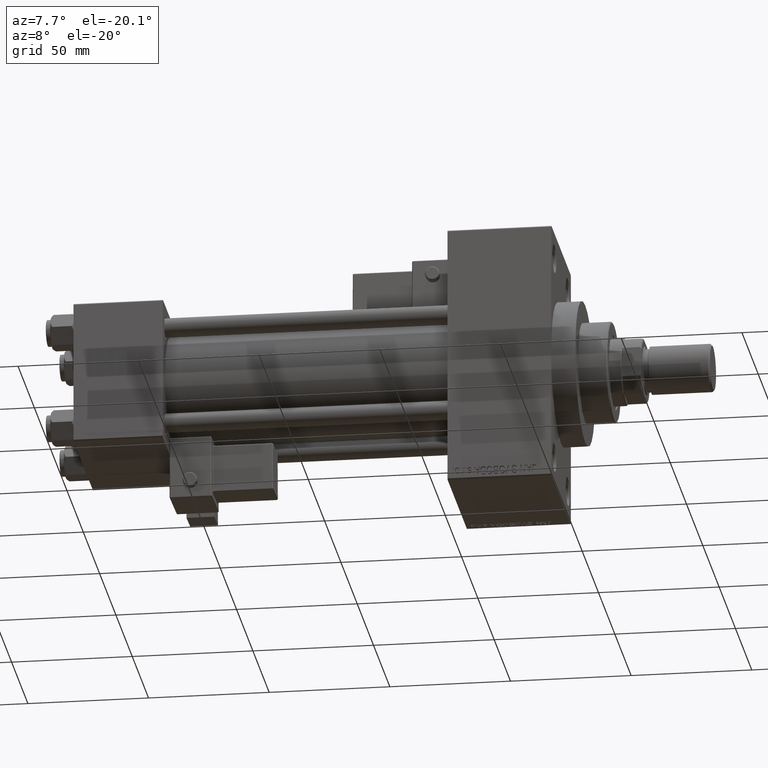
[diagram: clean part render]
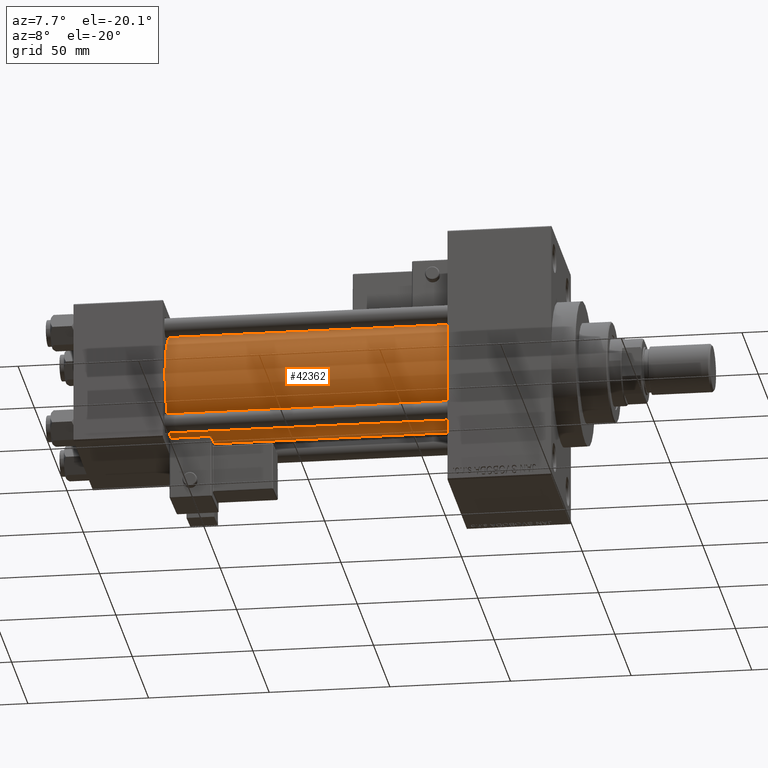
[diagram: same view with one face highlighted and labeled with its STEP entity id]
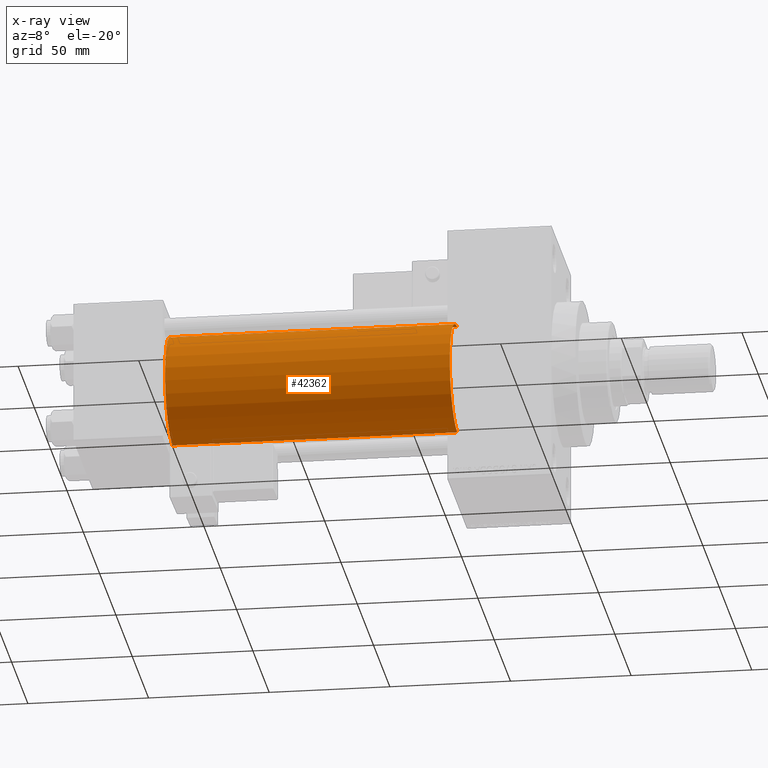
[diagram: x-ray of the same camera — body ghosted, the highlighted face saturated]
A machine part, auxiliary view. The second image highlights one B-rep face of the part: STEP entity #42362.
The next image is the same camera in x-ray: the body ghosted, the highlighted face saturated — about 0% of this face is hidden behind the body in this view.
In plain terms, the highlighted cylindrical surface (partial cylindrical patch) has radius 23 mm, axis along (-1, -0, -0).
Its self-contained STEP definition (entity closure, byte-faithful):
#115 = CARTESIAN_POINT ( 'NONE',  ( 155.0000000000000000, 2.146024240737016609E-16, -23.00000000000000000 ) ) ;
#2075 = CARTESIAN_POINT ( 'NONE',  ( 37.00000000000000711, -2.602085213965210642E-15, 0.000000000000000000 ) ) ;
#4456 = VERTEX_POINT ( 'NONE', #21314 ) ;
#5191 = VECTOR ( 'NONE', #46521, 1000.000000000000000 ) ;
#5216 = EDGE_CURVE ( 'NONE', #28756, #4456, #15247, .T. ) ;
#6140 = FACE_OUTER_BOUND ( 'NONE', #24162, .T. ) ;
#7504 = EDGE_CURVE ( 'NONE', #46650, #28756, #25434, .T. ) ;
#8818 = VECTOR ( 'NONE', #18774, 1000.000000000000000 ) ;
#9070 = ORIENTED_EDGE ( 'NONE', *, *, #33088, .T. ) ;
#14269 = LINE ( 'NONE', #26080, #8818 ) ;
#15247 = LINE ( 'NONE', #115, #5191 ) ;
#17540 = DIRECTION ( 'NONE',  ( 0.000000000000000000, 0.000000000000000000, -1.000000000000000000 ) ) ;
#17688 = DIRECTION ( 'NONE',  ( 1.000000000000000000, -0.000000000000000000, 0.000000000000000000 ) ) ;
#18774 = DIRECTION ( 'NONE',  ( -1.000000000000000000, -0.000000000000000000, -0.000000000000000000 ) ) ;
#21314 = CARTESIAN_POINT ( 'NONE',  ( 37.00000000000000711, 2.146024240737016609E-16, -23.00000000000000000 ) ) ;
#21501 = CYLINDRICAL_SURFACE ( 'NONE', #37043, 23.00000000000000000 ) ;
#24162 = EDGE_LOOP ( 'NONE', ( #32517, #47142, #47826, #9070 ) ) ;
#25434 = CIRCLE ( 'NONE', #35077, 23.00000000000000000 ) ;
#26080 = CARTESIAN_POINT ( 'NONE',  ( 155.0000000000000000, -2.602085213965210642E-15, 23.00000000000000000 ) ) ;
#26767 = CIRCLE ( 'NONE', #47772, 23.00000000000000000 ) ;
#27022 = CARTESIAN_POINT ( 'NONE',  ( 155.0000000000000000, 2.146024240737016609E-16, -23.00000000000000000 ) ) ;
#28291 = CARTESIAN_POINT ( 'NONE',  ( 155.0000000000000000, -2.602085213965210642E-15, 0.000000000000000000 ) ) ;
#28756 = VERTEX_POINT ( 'NONE', #27022 ) ;
#30370 = CARTESIAN_POINT ( 'NONE',  ( 37.00000000000000711, -2.602085213965210642E-15, 23.00000000000000000 ) ) ;
#32517 = ORIENTED_EDGE ( 'NONE', *, *, #5216, .F. ) ;
#33088 = EDGE_CURVE ( 'NONE', #37468, #4456, #26767, .T. ) ;
#35077 = AXIS2_PLACEMENT_3D ( 'NONE', #45294, #37209, #17540 ) ;
#36345 = DIRECTION ( 'NONE',  ( 0.000000000000000000, 0.000000000000000000, 1.000000000000000000 ) ) ;
#37043 = AXIS2_PLACEMENT_3D ( 'NONE', #28291, #37874, #45715 ) ;
#37209 = DIRECTION ( 'NONE',  ( 1.000000000000000000, 0.000000000000000000, 0.000000000000000000 ) ) ;
#37468 = VERTEX_POINT ( 'NONE', #30370 ) ;
#37874 = DIRECTION ( 'NONE',  ( -1.000000000000000000, -0.000000000000000000, -0.000000000000000000 ) ) ;
#40997 = CARTESIAN_POINT ( 'NONE',  ( 155.0000000000000000, -2.602085213965210642E-15, 23.00000000000000000 ) ) ;
#42141 = EDGE_CURVE ( 'NONE', #46650, #37468, #14269, .T. ) ;
#42362 = ADVANCED_FACE ( 'NONE', ( #6140 ), #21501, .T. ) ;
#45294 = CARTESIAN_POINT ( 'NONE',  ( 155.0000000000000000, -2.602085213965210642E-15, 0.000000000000000000 ) ) ;
#45715 = DIRECTION ( 'NONE',  ( 0.000000000000000000, 0.000000000000000000, 1.000000000000000000 ) ) ;
#46521 = DIRECTION ( 'NONE',  ( -1.000000000000000000, -0.000000000000000000, -0.000000000000000000 ) ) ;
#46650 = VERTEX_POINT ( 'NONE', #40997 ) ;
#47142 = ORIENTED_EDGE ( 'NONE', *, *, #7504, .F. ) ;
#47772 = AXIS2_PLACEMENT_3D ( 'NONE', #2075, #17688, #36345 ) ;
#47826 = ORIENTED_EDGE ( 'NONE', *, *, #42141, .T. ) ;